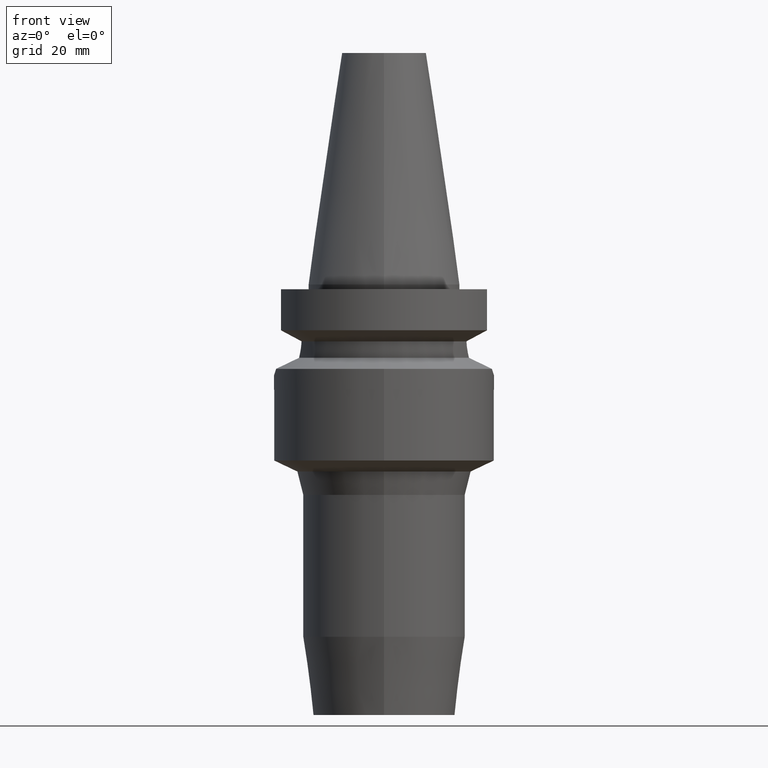
[diagram: clean part render]
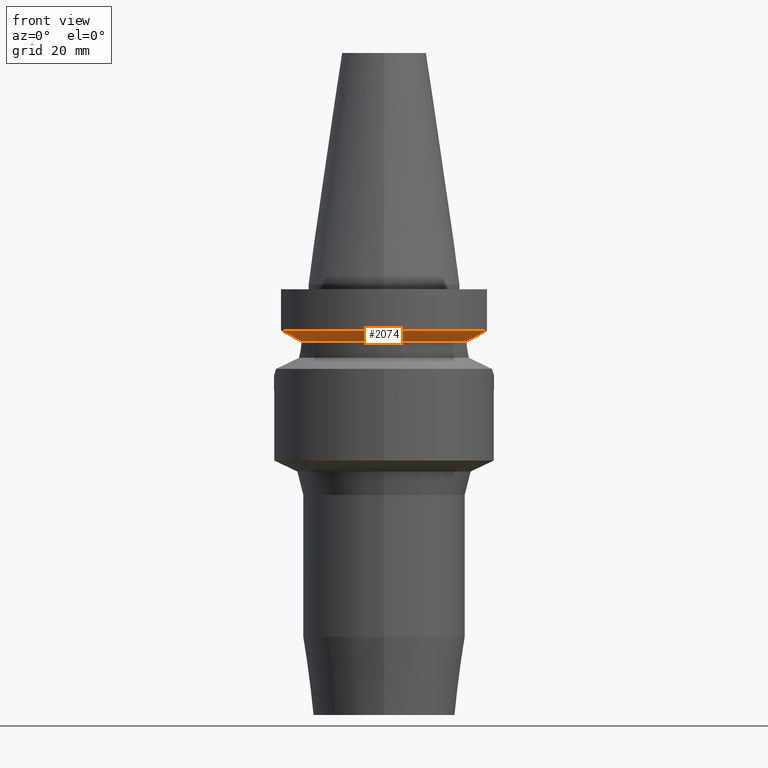
[diagram: same view with one face highlighted and labeled with its STEP entity id]
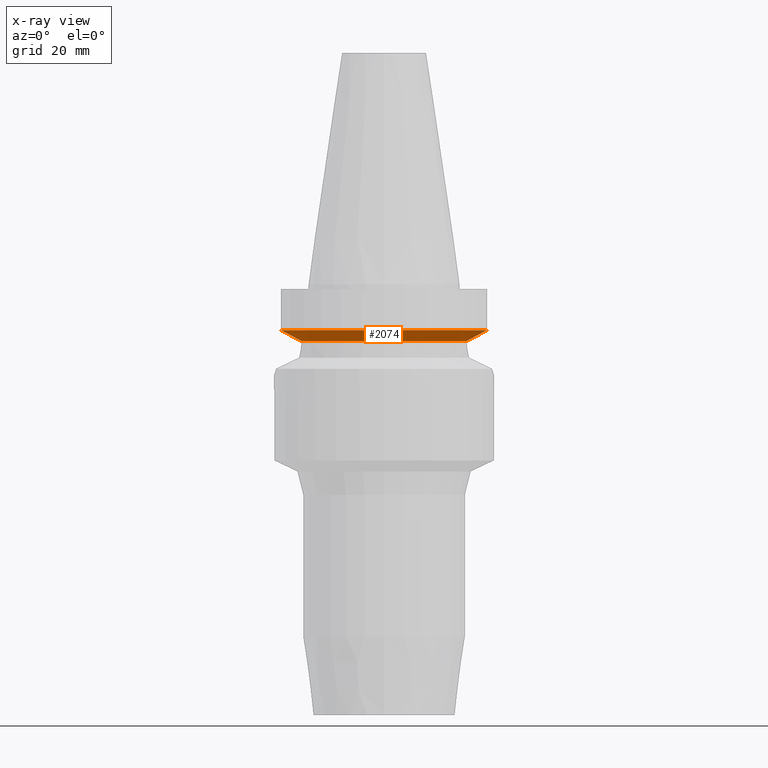
[diagram: x-ray of the same camera — body ghosted, the highlighted face saturated]
A machine part, front view. The second image highlights one B-rep face of the part: STEP entity #2074.
The next image is the same camera in x-ray: the body ghosted, the highlighted face saturated — about 0% of this face is hidden behind the body in this view.
In plain terms, the highlighted conical surface has half-angle 60 deg.
Its self-contained STEP definition (entity closure, byte-faithful):
#983=CARTESIAN_POINT('',(-2.154524325238E1,-8.049999577366E0,
-9.567211146629E0));
#984=CARTESIAN_POINT('',(-2.125934146996E1,-8.049999577366E0,
-9.721836180469E0));
#985=CARTESIAN_POINT('',(-2.068725319579E1,-8.049999439639E0,
-1.003056889170E1));
#986=CARTESIAN_POINT('',(-1.982793088310E1,-8.050002595215E0,
-1.049144078749E1));
#987=CARTESIAN_POINT('',(-1.925438162569E1,-8.049994318073E0,
-1.079747462469E1));
#988=CARTESIAN_POINT('',(-1.896738966520E1,-8.049994318073E0,
-1.095000099925E1));
#1000=CARTESIAN_POINT('',(0.E0,1.093341284897E-14,-9.567208369711E0));
#1001=DIRECTION('',(0.E0,0.E0,1.E0));
#1002=DIRECTION('',(-9.367496997597E-1,-3.500000000001E-1,0.E0));
#1003=AXIS2_PLACEMENT_3D('',#1000,#1001,#1002);
#1008=CARTESIAN_POINT('',(0.E0,1.093341284897E-14,-9.567208369711E0));
#1009=DIRECTION('',(0.E0,0.E0,1.E0));
#1010=DIRECTION('',(0.E0,-1.E0,0.E0));
#1011=AXIS2_PLACEMENT_3D('',#1008,#1009,#1010);
#1016=CARTESIAN_POINT('',(1.896736186694E1,-8.050001277873E0,
-1.094999977540E1));
#1017=CARTESIAN_POINT('',(1.877435788408E1,-8.050001277873E0,
-1.105257472423E1));
#1018=CARTESIAN_POINT('',(1.838865476369E1,-8.046082019801E0,
-1.125795281918E1));
#1019=CARTESIAN_POINT('',(1.781119204546E1,-8.028323726412E0,
-1.156685916139E1));
#1020=CARTESIAN_POINT('',(1.742708427632E1,-8.008477147752E0,
-1.177326090513E1));
#1021=CARTESIAN_POINT('',(1.723531135313E1,-7.996501749112E0,
-1.187660739354E1));
#1026=CARTESIAN_POINT('',(0.E0,1.093341284897E-14,-1.187660944647E1));
#1027=DIRECTION('',(0.E0,0.E0,-1.E0));
#1028=DIRECTION('',(9.071218755694E-1,-4.208680349747E-1,0.E0));
#1029=AXIS2_PLACEMENT_3D('',#1026,#1027,#1028);
#1034=CARTESIAN_POINT('',(0.E0,1.093341284897E-14,-1.187660944647E1));
#1035=DIRECTION('',(0.E0,0.E0,-1.E0));
#1036=DIRECTION('',(0.E0,-1.E0,0.E0));
#1037=AXIS2_PLACEMENT_3D('',#1034,#1035,#1036);
#1042=CARTESIAN_POINT('',(-1.723531622872E1,-7.996491146968E0,
-1.187660607765E1));
#1043=CARTESIAN_POINT('',(-1.742711751359E1,-8.008468272466E0,
-1.177324424037E1));
#1044=CARTESIAN_POINT('',(-1.781125610054E1,-8.028331856145E0,
-1.156681091071E1));
#1045=CARTESIAN_POINT('',(-1.838870194717E1,-8.046085192099E0,
-1.125790844380E1));
#1046=CARTESIAN_POINT('',(-1.877442071800E1,-8.049994318073E0,
-1.105255737005E1));
#1047=CARTESIAN_POINT('',(-1.896738966520E1,-8.049994318073E0,
-1.095000099925E1));
#1066=CARTESIAN_POINT('',(1.896736186694E1,-8.050001277873E0,
-1.094999977540E1));
#1067=CARTESIAN_POINT('',(1.925439178280E1,-8.050001277873E0,
-1.079745329166E1));
#1068=CARTESIAN_POINT('',(1.982795252656E1,-8.049999682934E0,
-1.049150139893E1));
#1069=CARTESIAN_POINT('',(2.068728862309E1,-8.049999192921E0,
-1.003062464902E1));
#1070=CARTESIAN_POINT('',(2.125933007629E1,-8.050002094562E0,
-9.721825273558E0));
#1071=CARTESIAN_POINT('',(2.154524231188E1,-8.050002094562E0,
-9.567194606553E0));
#1086=CARTESIAN_POINT('',(1.723531135313E1,-7.996501749112E0,
-1.187660739354E1));
#1206=VERTEX_POINT('',#1086);
#1207=VERTEX_POINT('',#1016);
#1234=CARTESIAN_POINT('',(-1.896738966520E1,-8.049994318073E0,
-1.095000099925E1));
#1235=VERTEX_POINT('',#1234);
#1236=VERTEX_POINT('',#1042);
#1237=CARTESIAN_POINT('',(0.E0,-1.9E1,-1.187660944647E1));
#1238=VERTEX_POINT('',#1237);
#1241=VERTEX_POINT('',#983);
#1242=CARTESIAN_POINT('',(0.E0,-2.3E1,-9.567208369711E0));
#1243=CARTESIAN_POINT('',(2.154524309447E1,-8.050000000001E0,
-9.567208369711E0));
#1244=VERTEX_POINT('',#1242);
#1245=VERTEX_POINT('',#1243);
#2054=CARTESIAN_POINT('',(0.E0,1.093341284897E-14,-1.072190890809E1));
#2055=DIRECTION('',(0.E0,0.E0,1.E0));
#2056=DIRECTION('',(0.E0,1.E0,0.E0));
#2057=AXIS2_PLACEMENT_3D('',#2054,#2055,#2056);
#2058=CONICAL_SURFACE('',#2057,2.1E1,6.E1);
#2059=ORIENTED_EDGE('',*,*,#2044,.F.);
#2061=ORIENTED_EDGE('',*,*,#2060,.T.);
#2063=ORIENTED_EDGE('',*,*,#2062,.T.);
#2065=ORIENTED_EDGE('',*,*,#2064,.F.);
#2066=ORIENTED_EDGE('',*,*,#1800,.T.);
#2068=ORIENTED_EDGE('',*,*,#2067,.T.);
#2070=ORIENTED_EDGE('',*,*,#2069,.T.);
#2071=ORIENTED_EDGE('',*,*,#1859,.T.);
#2072=EDGE_LOOP('',(#2059,#2061,#2063,#2065,#2066,#2068,#2070,#2071));
#2073=FACE_OUTER_BOUND('',#2072,.F.);
#989=B_SPLINE_CURVE_WITH_KNOTS('',3,(#983,#984,#985,#986,#987,#988),
.UNSPECIFIED.,.F.,.F.,(4,1,1,4),(0.E0,3.333333333333E-1,6.666666666667E-1,1.E0),
.UNSPECIFIED.);
#1004=CIRCLE('',#1003,2.3E1);
#1012=CIRCLE('',#1011,2.3E1);
#1022=B_SPLINE_CURVE_WITH_KNOTS('',3,(#1016,#1017,#1018,#1019,#1020,#1021),
.UNSPECIFIED.,.F.,.F.,(4,1,1,4),(0.E0,3.333333333333E-1,6.666666666667E-1,1.E0),
.UNSPECIFIED.);
#1030=CIRCLE('',#1029,1.9E1);
#1038=CIRCLE('',#1037,1.9E1);
#1048=B_SPLINE_CURVE_WITH_KNOTS('',3,(#1042,#1043,#1044,#1045,#1046,#1047),
.UNSPECIFIED.,.F.,.F.,(4,1,1,4),(0.E0,3.333333333333E-1,6.666666666667E-1,1.E0),
.UNSPECIFIED.);
#1072=B_SPLINE_CURVE_WITH_KNOTS('',3,(#1066,#1067,#1068,#1069,#1070,#1071),
.UNSPECIFIED.,.F.,.F.,(4,1,1,4),(0.E0,3.333333333333E-1,6.666666666667E-1,1.E0),
.UNSPECIFIED.);
#1800=EDGE_CURVE('',#1207,#1206,#1022,.T.);
#1859=EDGE_CURVE('',#1236,#1235,#1048,.T.);
#2044=EDGE_CURVE('',#1241,#1235,#989,.T.);
#2060=EDGE_CURVE('',#1241,#1244,#1004,.T.);
#2062=EDGE_CURVE('',#1244,#1245,#1012,.T.);
#2064=EDGE_CURVE('',#1207,#1245,#1072,.T.);
#2067=EDGE_CURVE('',#1206,#1238,#1030,.T.);
#2069=EDGE_CURVE('',#1238,#1236,#1038,.T.);
#2074=ADVANCED_FACE('',(#2073),#2058,.T.);